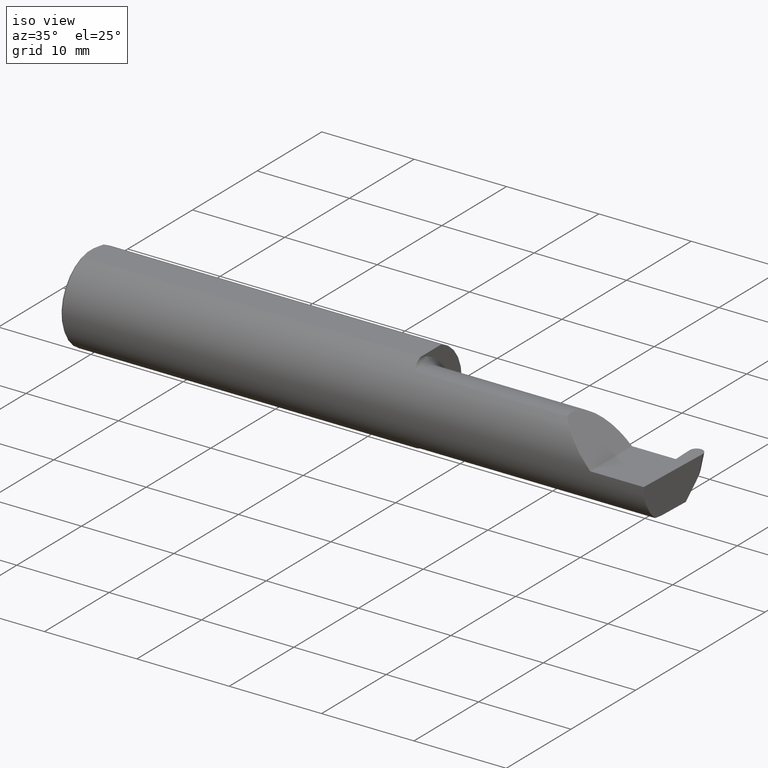
[diagram: clean part render]
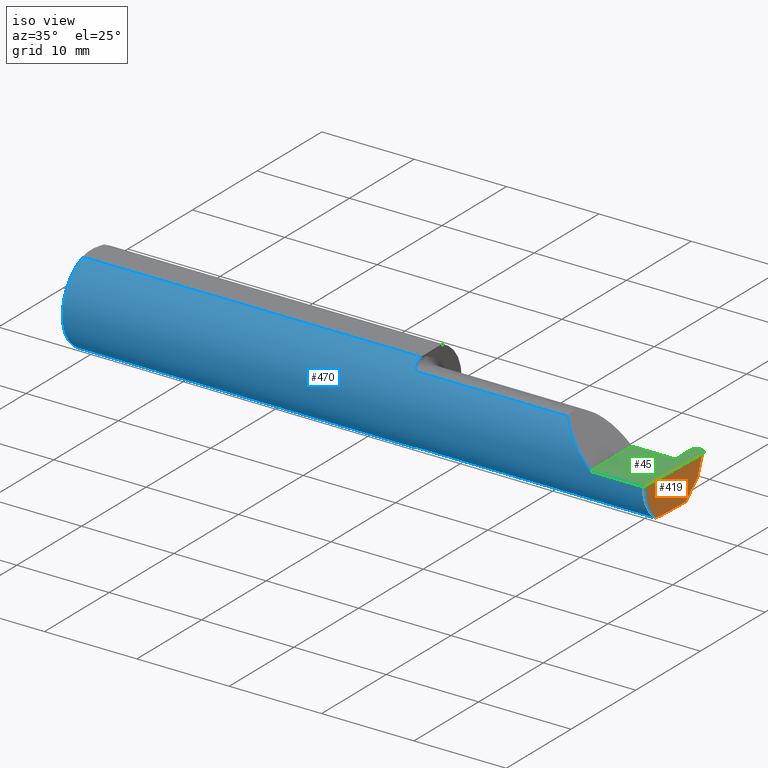
[diagram: same view with three faces highlighted in distinct colors, each labeled with its STEP entity id]
A machine part, iso view with three faces highlighted in distinct colors.
Their STEP definitions:

[orange] entity #419 — the highlighted planar face has unit normal (-0.9992, 0.0349, 0.0175).
#6 = VERTEX_POINT ( 'NONE', #655 ) ;
#13 = EDGE_CURVE ( 'NONE', #455, #108, #382, .T. ) ;
#28 = VERTEX_POINT ( 'NONE', #490 ) ;
#35 = ORIENTED_EDGE ( 'NONE', *, *, #118, .T. ) ;
#52 = VECTOR ( 'NONE', #465, 39.37007874015748854 ) ;
#63 = DIRECTION ( 'NONE',  ( -0.03489949670249509889, -0.9993908270190959842, 0.000000000000000000 ) ) ;
#80 = CARTESIAN_POINT ( 'NONE',  ( 2.496474746315712867, 0.1068850723125632091, -0.1034179792305871259 ) ) ;
#81 = LINE ( 'NONE', #451, #52 ) ;
#96 =( BOUNDED_CURVE ( )  B_SPLINE_CURVE ( 3, ( #703, #152, #653, #478 ),
 .UNSPECIFIED., .F., .F. ) 
 B_SPLINE_CURVE_WITH_KNOTS ( ( 4, 4 ),
 ( 0.8789888184544275562, 1.107026853503871644 ),
 .UNSPECIFIED. ) 
 CURVE ( )  GEOMETRIC_REPRESENTATION_ITEM ( )  RATIONAL_B_SPLINE_CURVE ( ( 1.000000000000000000, 0.9956712472009929815, 0.9956712472009929815, 1.000000000000000000 ) ) 
 REPRESENTATION_ITEM ( '' )  );
#108 = VERTEX_POINT ( 'NONE', #237 ) ;
#118 = EDGE_CURVE ( 'NONE', #6, #28, #81, .T. ) ;
#152 = CARTESIAN_POINT ( 'NONE',  ( 2.488245243745037527, -0.1061291577212408604, -0.1486999626928446339 ) ) ;
#157 = CARTESIAN_POINT ( 'NONE',  ( 2.488006099050898090, -0.1873499999999999888, 0.000000000000000000 ) ) ;
#208 = ORIENTED_EDGE ( 'NONE', *, *, #282, .F. ) ;
#215 = DIRECTION ( 'NONE',  ( -0.03489949670249509889, -0.9993908270190959842, 0.000000000000000000 ) ) ;
#220 = ORIENTED_EDGE ( 'NONE', *, *, #527, .F. ) ;
#228 = VECTOR ( 'NONE', #580, 39.37007874015748854 ) ;
#236 = LINE ( 'NONE', #80, #670 ) ;
#237 = CARTESIAN_POINT ( 'NONE',  ( 2.489018003393509648, -0.08335000000000003517, -0.1500000000000000500 ) ) ;
#256 = CARTESIAN_POINT ( 'NONE',  ( 2.487901662807321390, -0.1172600179964006090, -0.1461167706989303650 ) ) ;
#272 = CARTESIAN_POINT ( 'NONE',  ( 2.489315391880043915, -0.07483390797619574042, -0.1500000000000000500 ) ) ;
#282 = EDGE_CURVE ( 'NONE', #310, #315, #302, .T. ) ;
#291 = ORIENTED_EDGE ( 'NONE', *, *, #364, .T. ) ;
#302 =( BOUNDED_CURVE ( )  B_SPLINE_CURVE ( 3, ( #314, #536, #698, #157 ),
 .UNSPECIFIED., .F., .T. ) 
 B_SPLINE_CURVE_WITH_KNOTS ( ( 4, 4 ),
 ( 5.852427379562164411, 6.746954780470612256 ),
 .UNSPECIFIED. ) 
 CURVE ( )  GEOMETRIC_REPRESENTATION_ITEM ( )  RATIONAL_B_SPLINE_CURVE ( ( 1.000000000000000000, 0.9344226172588802060, 0.9344226172588802060, 1.000000000000000000 ) ) 
 REPRESENTATION_ITEM ( '' )  );
#310 = VERTEX_POINT ( 'NONE', #256 ) ;
#311 = VECTOR ( 'NONE', #63, 39.37007874015748143 ) ;
#314 = CARTESIAN_POINT ( 'NONE',  ( 2.487901662807321390, -0.1172600179964006090, -0.1461167706989303650 ) ) ;
#315 = VERTEX_POINT ( 'NONE', #423 ) ;
#344 = CARTESIAN_POINT ( 'NONE',  ( 2.494034478493234452, 0.06030305154315081240, -0.1500000000000000500 ) ) ;
#364 = EDGE_CURVE ( 'NONE', #28, #315, #426, .T. ) ;
#382 = LINE ( 'NONE', #272, #311 ) ;
#404 = DIRECTION ( 'NONE',  ( -0.03701744261649878714, -0.7066221440565398915, -0.7066221440565479961 ) ) ;
#419 = ADVANCED_FACE ( 'NONE', ( #454 ), #501, .F. ) ;
#423 = CARTESIAN_POINT ( 'NONE',  ( 2.488006099050898090, -0.1873499999999999888, 0.000000000000000000 ) ) ;
#424 = ORIENTED_EDGE ( 'NONE', *, *, #662, .T. ) ;
#426 = LINE ( 'NONE', #486, #228 ) ;
#445 = EDGE_LOOP ( 'NONE', ( #220, #35, #291, #208, #424, #476 ) ) ;
#451 = CARTESIAN_POINT ( 'NONE',  ( 2.499950392650356346, 0.1545085540790380740, 0.0003624150208497705782 ) ) ;
#454 = FACE_OUTER_BOUND ( 'NONE', #445, .T. ) ;
#455 = VERTEX_POINT ( 'NONE', #344 ) ;
#465 = DIRECTION ( 'NONE',  ( 0.02739170151060046562, 0.3089010440752013031, 0.9506996579664918068 ) ) ;
#476 = ORIENTED_EDGE ( 'NONE', *, *, #13, .F. ) ;
#477 = AXIS2_PLACEMENT_3D ( 'NONE', #648, #512, #215 ) ;
#478 = CARTESIAN_POINT ( 'NONE',  ( 2.489018003393509648, -0.08335000000000003517, -0.1500000000000000500 ) ) ;
#486 = CARTESIAN_POINT ( 'NONE',  ( 2.499982912697886750, 0.1556210691174950700, 0.000000000000000000 ) ) ;
#490 = CARTESIAN_POINT ( 'NONE',  ( 2.499939950694276103, 0.1543907983005533280, 0.000000000000000000 ) ) ;
#501 = PLANE ( 'NONE',  #477 ) ;
#512 = DIRECTION ( 'NONE',  ( -0.9992386149554828290, 0.03489418134010779937, 0.01745240643728358798 ) ) ;
#527 = EDGE_CURVE ( 'NONE', #6, #455, #236, .T. ) ;
#536 = CARTESIAN_POINT ( 'NONE',  ( 2.486959146249366537, -0.1623470442677541203, -0.1099340280425339100 ) ) ;
#580 = DIRECTION ( 'NONE',  ( -0.03489949670249509889, -0.9993908270190959842, 0.000000000000000000 ) ) ;
#648 = CARTESIAN_POINT ( 'NONE',  ( 2.499982912697886750, 0.1556210691174950700, 0.000000000000000000 ) ) ;
#653 = CARTESIAN_POINT ( 'NONE',  ( 2.488618975064261996, -0.09477667630339417504, -0.1500000000000000500 ) ) ;
#655 = CARTESIAN_POINT ( 'NONE',  ( 2.497553638666706544, 0.1274799371216591704, -0.08282311442149091485 ) ) ;
#662 = EDGE_CURVE ( 'NONE', #310, #108, #96, .T. ) ;
#670 = VECTOR ( 'NONE', #404, 39.37007874015748143 ) ;
#698 = CARTESIAN_POINT ( 'NONE',  ( 2.486996401427643555, -0.1873500000000000443, -0.05781030015605125721 ) ) ;
#703 = CARTESIAN_POINT ( 'NONE',  ( 2.487901662807321390, -0.1172600179964006090, -0.1461167706989303650 ) ) ;

[blue] entity #470 — the highlighted cylindrical surface (partial cylindrical patch) has radius 4.7587 mm, axis along (-1, -0, -0).
#1 = CARTESIAN_POINT ( 'NONE',  ( 1.450000000000000178, -0.06851976604679066440, 0.1743704796142198643 ) ) ;
#4 = DIRECTION ( 'NONE',  ( 0.000000000000000000, 0.000000000000000000, -1.000000000000000000 ) ) ;
#9 = CARTESIAN_POINT ( 'NONE',  ( 1.450000000000000178, -0.06851976604679066440, -0.1743704796142198643 ) ) ;
#17 = CARTESIAN_POINT ( 'NONE',  ( 1.465028532764138580, -0.1137241120808235861, -0.1488947809299403513 ) ) ;
#20 = DIRECTION ( 'NONE',  ( 0.000000000000000000, 1.000000000000000000, 0.000000000000000000 ) ) ;
#24 =( BOUNDED_CURVE ( )  B_SPLINE_CURVE ( 3, ( #248, #689, #198, #531 ),
 .UNSPECIFIED., .F., .F. ) 
 B_SPLINE_CURVE_WITH_KNOTS ( ( 4, 4 ),
 ( 4.712388980384688786, 5.606916381293133966 ),
 .UNSPECIFIED. ) 
 CURVE ( )  GEOMETRIC_REPRESENTATION_ITEM ( )  RATIONAL_B_SPLINE_CURVE ( ( 1.000000000000000000, 0.9344226172588806500, 0.9344226172588806500, 1.000000000000000000 ) ) 
 REPRESENTATION_ITEM ( '' )  );
#25 = CARTESIAN_POINT ( 'NONE',  ( 1.474999999999999867, -0.1172600179964005812, 0.1461167706989303927 ) ) ;
#40 = DIRECTION ( 'NONE',  ( 0.000000000000000000, 1.000000000000000000, 0.000000000000000000 ) ) ;
#41 = EDGE_CURVE ( 'NONE', #511, #187, #72, .T. ) ;
#44 = VERTEX_POINT ( 'NONE', #496 ) ;
#54 = AXIS2_PLACEMENT_3D ( 'NONE', #603, #58, #4 ) ;
#58 = DIRECTION ( 'NONE',  ( 1.000000000000000000, 0.000000000000000000, 0.000000000000000000 ) ) ;
#65 = CARTESIAN_POINT ( 'NONE',  ( 1.472174967710399462, -0.1172600179964005812, -0.1461167706989303927 ) ) ;
#69 = CARTESIAN_POINT ( 'NONE',  ( 1.458439486659307338, -0.1064616213911158682, -0.1542305641651500470 ) ) ;
#72 = CIRCLE ( 'NONE', #54, 0.1873499999999999888 ) ;
#74 = CIRCLE ( 'NONE', #388, 0.1873499999999999888 ) ;
#79 = EDGE_CURVE ( 'NONE', #343, #387, #85, .T. ) ;
#83 = ORIENTED_EDGE ( 'NONE', *, *, #282, .T. ) ;
#85 = CIRCLE ( 'NONE', #166, 0.1873499999999999888 ) ;
#91 = CARTESIAN_POINT ( 'NONE',  ( 1.959450000000000136, -0.1172600179964006506, 0.1461167706989303650 ) ) ;
#102 = CARTESIAN_POINT ( 'NONE',  ( 0.01000000000000013205, 0.000000000000000000, 0.000000000000000000 ) ) ;
#117 = CARTESIAN_POINT ( 'NONE',  ( 1.474999999999999867, -0.1172600179964005812, -0.1461167706989303650 ) ) ;
#120 = LINE ( 'NONE', #560, #262 ) ;
#123 = CARTESIAN_POINT ( 'NONE',  ( 0.01000000000000013205, 0.000000000000000000, -0.1873499999999999888 ) ) ;
#125 = CARTESIAN_POINT ( 'NONE',  ( 1.450358271039144054, -0.07873626113568082951, -0.1700887912276896341 ) ) ;
#130 = CARTESIAN_POINT ( 'NONE',  ( 1.451829077486400443, -0.08839624499054646312, 0.1652742498708037744 ) ) ;
#137 = LINE ( 'NONE', #357, #402 ) ;
#143 = AXIS2_PLACEMENT_3D ( 'NONE', #556, #616, #673 ) ;
#157 = CARTESIAN_POINT ( 'NONE',  ( 2.488006099050898090, -0.1873499999999999888, 0.000000000000000000 ) ) ;
#166 = AXIS2_PLACEMENT_3D ( 'NONE', #576, #686, #20 ) ;
#181 = CARTESIAN_POINT ( 'NONE',  ( 1.456304331342287872, -0.1022198306720690925, -0.1570962426853818594 ) ) ;
#187 = VERTEX_POINT ( 'NONE', #123 ) ;
#188 = VECTOR ( 'NONE', #514, 39.37007874015748143 ) ;
#191 = LINE ( 'NONE', #346, #188 ) ;
#197 = CARTESIAN_POINT ( 'NONE',  ( 1.472161949849308371, -0.1172600179964060768, 0.1461167706989261184 ) ) ;
#198 = CARTESIAN_POINT ( 'NONE',  ( 2.150065971957465294, -0.1623470442677543146, 0.1099340280425333688 ) ) ;
#200 = ORIENTED_EDGE ( 'NONE', *, *, #319, .T. ) ;
#207 = CARTESIAN_POINT ( 'NONE',  ( 1.450000000000000178, -0.06851976604679066440, -0.1743704796142198643 ) ) ;
#209 = EDGE_CURVE ( 'NONE', #255, #453, #191, .T. ) ;
#211 = ORIENTED_EDGE ( 'NONE', *, *, #79, .F. ) ;
#213 = CARTESIAN_POINT ( 'NONE',  ( 1.450000000000000178, 0.000000000000000000, 0.000000000000000000 ) ) ;
#214 = VERTEX_POINT ( 'NONE', #25 ) ;
#216 = ORIENTED_EDGE ( 'NONE', *, *, #433, .F. ) ;
#226 = CARTESIAN_POINT ( 'NONE',  ( 1.469511795768554840, -0.1163687266324234804, -0.1468371510166788796 ) ) ;
#241 = ORIENTED_EDGE ( 'NONE', *, *, #548, .F. ) ;
#242 = VECTOR ( 'NONE', #474, 39.37007874015748143 ) ;
#248 = CARTESIAN_POINT ( 'NONE',  ( 2.260000000000000231, -0.1873499999999999888, 2.939152317953647352E-17 ) ) ;
#250 = CARTESIAN_POINT ( 'NONE',  ( 1.465004157323697376, -0.1137044537483316020, 0.1489098419202428691 ) ) ;
#255 = VERTEX_POINT ( 'NONE', #362 ) ;
#256 = CARTESIAN_POINT ( 'NONE',  ( 2.487901662807321390, -0.1172600179964006090, -0.1461167706989303650 ) ) ;
#260 = AXIS2_PLACEMENT_3D ( 'NONE', #213, #305, #40 ) ;
#262 = VECTOR ( 'NONE', #280, 39.37007874015748143 ) ;
#264 = DIRECTION ( 'NONE',  ( 1.000000000000000000, 0.000000000000000000, 0.000000000000000000 ) ) ;
#268 = ORIENTED_EDGE ( 'NONE', *, *, #330, .F. ) ;
#280 = DIRECTION ( 'NONE',  ( -1.000000000000000000, -5.153652266948881677E-17, -0.000000000000000000 ) ) ;
#281 = B_SPLINE_CURVE_WITH_KNOTS ( 'NONE', 3,
 ( #117, #65, #226, #17, #564, #69, #181, #447, #612, #125, #664, #9 ),
 .UNSPECIFIED., .F., .F.,
 ( 4, 2, 2, 2, 2, 4 ),
 ( 1.967976973658592312E-07, 0.0002120314145722273266, 0.0004238660314470887587, 0.0008475352651967989377, 0.001271204498946509279, 0.001694873732696219621 ),
 .UNSPECIFIED. ) ;
#282 = EDGE_CURVE ( 'NONE', #310, #315, #302, .T. ) ;
#288 = LINE ( 'NONE', #513, #313 ) ;
#298 = CIRCLE ( 'NONE', #260, 0.1873499999999999888 ) ;
#300 = CARTESIAN_POINT ( 'NONE',  ( 1.450353553376444893, -0.07868116735658675642, 0.1701139256562800572 ) ) ;
#302 =( BOUNDED_CURVE ( )  B_SPLINE_CURVE ( 3, ( #314, #536, #698, #157 ),
 .UNSPECIFIED., .F., .T. ) 
 B_SPLINE_CURVE_WITH_KNOTS ( ( 4, 4 ),
 ( 5.852427379562164411, 6.746954780470612256 ),
 .UNSPECIFIED. ) 
 CURVE ( )  GEOMETRIC_REPRESENTATION_ITEM ( )  RATIONAL_B_SPLINE_CURVE ( ( 1.000000000000000000, 0.9344226172588802060, 0.9344226172588802060, 1.000000000000000000 ) ) 
 REPRESENTATION_ITEM ( '' )  );
#303 = ORIENTED_EDGE ( 'NONE', *, *, #41, .T. ) ;
#305 = DIRECTION ( 'NONE',  ( 1.000000000000000000, 5.153652266948881677E-17, 0.000000000000000000 ) ) ;
#310 = VERTEX_POINT ( 'NONE', #256 ) ;
#313 = VECTOR ( 'NONE', #400, 39.37007874015748143 ) ;
#314 = CARTESIAN_POINT ( 'NONE',  ( 2.487901662807321390, -0.1172600179964006090, -0.1461167706989303650 ) ) ;
#315 = VERTEX_POINT ( 'NONE', #423 ) ;
#319 = EDGE_CURVE ( 'NONE', #44, #608, #24, .T. ) ;
#330 = EDGE_CURVE ( 'NONE', #214, #608, #585, .T. ) ;
#332 = CYLINDRICAL_SURFACE ( 'NONE', #143, 0.1873499999999999888 ) ;
#334 = EDGE_LOOP ( 'NONE', ( #699, #83, #369, #200, #268, #241, #211, #415, #303, #687, #472, #518, #216 ) ) ;
#337 = B_SPLINE_CURVE_WITH_KNOTS ( 'NONE', 3,
 ( #526, #516, #300, #130, #397, #412, #620, #688, #250, #568, #197, #350 ),
 .UNSPECIFIED., .F., .F.,
 ( 4, 2, 2, 2, 2, 4 ),
 ( 4.423516731080825304E-05, 0.0004615475116586706503, 0.0008788598560065329730, 0.001296172200354395350, 0.001504828372528325834, 0.001713484544702256317 ),
 .UNSPECIFIED. ) ;
#340 = EDGE_CURVE ( 'NONE', #352, #255, #298, .T. ) ;
#343 = VERTEX_POINT ( 'NONE', #694 ) ;
#346 = CARTESIAN_POINT ( 'NONE',  ( 0.000000000000000000, 0.06325108694718235836, 0.1763499999999999235 ) ) ;
#350 = CARTESIAN_POINT ( 'NONE',  ( 1.474999999999999867, -0.1172600179964005812, 0.1461167706989303927 ) ) ;
#352 = VERTEX_POINT ( 'NONE', #207 ) ;
#357 = CARTESIAN_POINT ( 'NONE',  ( 3.749399456654646757E-32, -0.1873499999999999610, 3.061616997868383634E-16 ) ) ;
#362 = CARTESIAN_POINT ( 'NONE',  ( 1.450000000000000178, 0.06325108694718235836, 0.1763499999999999235 ) ) ;
#369 = ORIENTED_EDGE ( 'NONE', *, *, #604, .T. ) ;
#377 = CARTESIAN_POINT ( 'NONE',  ( 0.01000000000000013205, 0.06325108694718235836, 0.1763499999999999235 ) ) ;
#387 = VERTEX_POINT ( 'NONE', #1 ) ;
#388 = AXIS2_PLACEMENT_3D ( 'NONE', #102, #264, #492 ) ;
#391 = FACE_OUTER_BOUND ( 'NONE', #334, .T. ) ;
#395 = CARTESIAN_POINT ( 'NONE',  ( 1.474999999999999867, -0.1172600179964005812, -0.1461167706989303650 ) ) ;
#397 = CARTESIAN_POINT ( 'NONE',  ( 1.452945243422983035, -0.09312071749437417223, 0.1626553472577906556 ) ) ;
#400 = DIRECTION ( 'NONE',  ( 1.000000000000000000, 0.000000000000000000, 0.000000000000000000 ) ) ;
#402 = VECTOR ( 'NONE', #579, 39.37007874015748143 ) ;
#410 = VERTEX_POINT ( 'NONE', #395 ) ;
#412 = CARTESIAN_POINT ( 'NONE',  ( 1.456287624083520083, -0.1021858045380144436, 0.1571187174372875028 ) ) ;
#415 = ORIENTED_EDGE ( 'NONE', *, *, #578, .F. ) ;
#423 = CARTESIAN_POINT ( 'NONE',  ( 2.488006099050898090, -0.1873499999999999888, 0.000000000000000000 ) ) ;
#433 = EDGE_CURVE ( 'NONE', #410, #352, #281, .T. ) ;
#447 = CARTESIAN_POINT ( 'NONE',  ( 1.452960551809340473, -0.09317341542745746774, -0.1626248379125196930 ) ) ;
#453 = VERTEX_POINT ( 'NONE', #377 ) ;
#467 = CARTESIAN_POINT ( 'NONE',  ( 0.01000000000000013205, -0.06325108694718235836, 0.1763499999999999235 ) ) ;
#470 = ADVANCED_FACE ( 'NONE', ( #391 ), #332, .T. ) ;
#471 = EDGE_CURVE ( 'NONE', #310, #410, #120, .T. ) ;
#472 = ORIENTED_EDGE ( 'NONE', *, *, #209, .F. ) ;
#474 = DIRECTION ( 'NONE',  ( 1.000000000000000000, 5.153652266948881677E-17, 0.000000000000000000 ) ) ;
#492 = DIRECTION ( 'NONE',  ( 0.000000000000000000, 0.000000000000000000, -1.000000000000000000 ) ) ;
#496 = CARTESIAN_POINT ( 'NONE',  ( 2.260000000000000231, -0.1873499999999999888, 2.939152317953647352E-17 ) ) ;
#511 = VERTEX_POINT ( 'NONE', #467 ) ;
#513 = CARTESIAN_POINT ( 'NONE',  ( 0.000000000000000000, -0.06325108694718235836, 0.1763499999999999235 ) ) ;
#514 = DIRECTION ( 'NONE',  ( -1.000000000000000000, -0.000000000000000000, -0.000000000000000000 ) ) ;
#516 = CARTESIAN_POINT ( 'NONE',  ( 1.449999999999999734, -0.07367581953296700736, 0.1723443821957854338 ) ) ;
#518 = ORIENTED_EDGE ( 'NONE', *, *, #340, .F. ) ;
#522 = CARTESIAN_POINT ( 'NONE',  ( 2.113883229301068312, -0.1172600179964011224, 0.1461167706989300596 ) ) ;
#526 = CARTESIAN_POINT ( 'NONE',  ( 1.450000000000000178, -0.06851976604679066440, 0.1743704796142198643 ) ) ;
#531 = CARTESIAN_POINT ( 'NONE',  ( 2.113883229301068312, -0.1172600179964011224, 0.1461167706989300596 ) ) ;
#536 = CARTESIAN_POINT ( 'NONE',  ( 2.486959146249366537, -0.1623470442677541203, -0.1099340280425339100 ) ) ;
#548 = EDGE_CURVE ( 'NONE', #387, #214, #337, .T. ) ;
#556 = CARTESIAN_POINT ( 'NONE',  ( 0.000000000000000000, 0.000000000000000000, 0.000000000000000000 ) ) ;
#560 = CARTESIAN_POINT ( 'NONE',  ( 1.959450000000000136, -0.1172600179964006506, -0.1461167706989303650 ) ) ;
#564 = CARTESIAN_POINT ( 'NONE',  ( 1.463203859946834440, -0.1120371980050638844, -0.1501764597936559309 ) ) ;
#568 = CARTESIAN_POINT ( 'NONE',  ( 1.469481469043492083, -0.1163560528186165510, 0.1468472430636323656 ) ) ;
#576 = CARTESIAN_POINT ( 'NONE',  ( 1.450000000000000178, 0.000000000000000000, 0.000000000000000000 ) ) ;
#578 = EDGE_CURVE ( 'NONE', #511, #343, #288, .T. ) ;
#579 = DIRECTION ( 'NONE',  ( -1.000000000000000000, -0.000000000000000000, -0.000000000000000000 ) ) ;
#585 = LINE ( 'NONE', #91, #242 ) ;
#603 = CARTESIAN_POINT ( 'NONE',  ( 0.01000000000000013205, 0.000000000000000000, 0.000000000000000000 ) ) ;
#604 = EDGE_CURVE ( 'NONE', #315, #44, #137, .T. ) ;
#608 = VERTEX_POINT ( 'NONE', #522 ) ;
#612 = CARTESIAN_POINT ( 'NONE',  ( 1.451843912362378308, -0.08846956905169092722, -0.1652353808078972086 ) ) ;
#616 = DIRECTION ( 'NONE',  ( -1.000000000000000000, -0.000000000000000000, -0.000000000000000000 ) ) ;
#620 = CARTESIAN_POINT ( 'NONE',  ( 1.458475602106621638, -0.1064978748893405519, 0.1542035505680384444 ) ) ;
#623 = EDGE_CURVE ( 'NONE', #187, #453, #74, .T. ) ;
#664 = CARTESIAN_POINT ( 'NONE',  ( 1.449999999999999512, -0.07368234487347195827, -0.1723418180300747282 ) ) ;
#673 = DIRECTION ( 'NONE',  ( 0.000000000000000000, 0.000000000000000000, 1.000000000000000000 ) ) ;
#686 = DIRECTION ( 'NONE',  ( 1.000000000000000000, 5.153652266948881677E-17, 0.000000000000000000 ) ) ;
#687 = ORIENTED_EDGE ( 'NONE', *, *, #623, .T. ) ;
#688 = CARTESIAN_POINT ( 'NONE',  ( 1.463163223656403167, -0.1119926267047277324, 0.1502091925606063028 ) ) ;
#689 = CARTESIAN_POINT ( 'NONE',  ( 2.202189699843947857, -0.1873500000000000165, 0.05781030015605082700 ) ) ;
#694 = CARTESIAN_POINT ( 'NONE',  ( 1.450000000000000178, -0.06325108694718287183, 0.1763499999999999235 ) ) ;
#698 = CARTESIAN_POINT ( 'NONE',  ( 2.486996401427643555, -0.1873500000000000443, -0.05781030015605125721 ) ) ;
#699 = ORIENTED_EDGE ( 'NONE', *, *, #471, .F. ) ;

[green] entity #45 — the highlighted planar face has unit normal (-0, 0, -1).
#22 = DIRECTION ( 'NONE',  ( 1.000000000000000000, -0.000000000000000000, -0.000000000000000000 ) ) ;
#27 = CARTESIAN_POINT ( 'NONE',  ( 2.447024025498200750, 0.06664999999999991764, 0.000000000000000000 ) ) ;
#28 = VERTEX_POINT ( 'NONE', #490 ) ;
#29 = DIRECTION ( 'NONE',  ( -0.000000000000000000, 1.000000000000000000, -0.000000000000000000 ) ) ;
#31 = CARTESIAN_POINT ( 'NONE',  ( 2.488968613720943246, 0.1846500000000000641, -2.084523217784549751E-18 ) ) ;
#32 = VERTEX_POINT ( 'NONE', #378 ) ;
#44 = VERTEX_POINT ( 'NONE', #496 ) ;
#45 = ADVANCED_FACE ( 'NONE', ( #549 ), #383, .F. ) ;
#57 = CARTESIAN_POINT ( 'NONE',  ( 2.500000000000000000, -0.2500000000000000555, 0.000000000000000000 ) ) ;
#71 = VERTEX_POINT ( 'NONE', #27 ) ;
#76 = CARTESIAN_POINT ( 'NONE',  ( 2.472196486352602030, 0.1846500000000000363, 0.000000000000000000 ) ) ;
#77 = DIRECTION ( 'NONE',  ( 1.000000000000000000, -0.000000000000000000, -0.000000000000000000 ) ) ;
#78 = VERTEX_POINT ( 'NONE', #342 ) ;
#95 = LINE ( 'NONE', #368, #533 ) ;
#115 = DIRECTION ( 'NONE',  ( -1.224646799147353947E-16, 0.000000000000000000, -1.000000000000000000 ) ) ;
#127 = CARTESIAN_POINT ( 'NONE',  ( 2.447024025498200750, 0.06664999999999991764, 0.000000000000000000 ) ) ;
#133 = LINE ( 'NONE', #680, #273 ) ;
#134 =( BOUNDED_CURVE ( )  B_SPLINE_CURVE ( 3, ( #173, #386, #598, #602 ),
 .UNSPECIFIED., .F., .F. ) 
 B_SPLINE_CURVE_WITH_KNOTS ( ( 4, 4 ),
 ( 6.199081184676152212, 7.797674339294876411 ),
 .UNSPECIFIED. ) 
 CURVE ( )  GEOMETRIC_REPRESENTATION_ITEM ( )  RATIONAL_B_SPLINE_CURVE ( ( 1.000000000000000000, 0.7981407609938082626, 0.7981407609938082626, 1.000000000000000000 ) ) 
 REPRESENTATION_ITEM ( '' )  );
#137 = LINE ( 'NONE', #357, #402 ) ;
#141 = EDGE_CURVE ( 'NONE', #28, #566, #164, .T. ) ;
#154 = ORIENTED_EDGE ( 'NONE', *, *, #364, .F. ) ;
#164 =( BOUNDED_CURVE ( )  B_SPLINE_CURVE ( 3, ( #507, #354, #31, #392 ),
 .UNSPECIFIED., .F., .T. ) 
 B_SPLINE_CURVE_WITH_KNOTS ( ( 4, 4 ),
 ( 1.627103621474501827, 3.225696776093226248 ),
 .UNSPECIFIED. ) 
 CURVE ( )  GEOMETRIC_REPRESENTATION_ITEM ( )  RATIONAL_B_SPLINE_CURVE ( ( 1.000000000000000000, 0.7981407609938081515, 0.7981407609938081515, 1.000000000000000000 ) ) 
 REPRESENTATION_ITEM ( '' )  );
#173 = CARTESIAN_POINT ( 'NONE',  ( 2.471703513647399486, 0.1846500000000000363, 0.000000000000000000 ) ) ;
#190 = CARTESIAN_POINT ( 'NONE',  ( 2.471703513647399486, 0.1846500000000000363, 0.000000000000000000 ) ) ;
#199 = EDGE_CURVE ( 'NONE', #32, #71, #510, .T. ) ;
#202 = VECTOR ( 'NONE', #247, 39.37007874015748143 ) ;
#204 = VERTEX_POINT ( 'NONE', #290 ) ;
#219 = EDGE_CURVE ( 'NONE', #71, #78, #95, .T. ) ;
#221 = VECTOR ( 'NONE', #22, 39.37007874015748143 ) ;
#228 = VECTOR ( 'NONE', #580, 39.37007874015748854 ) ;
#247 = DIRECTION ( 'NONE',  ( 1.000000000000000000, 5.153652266948881677E-17, 0.000000000000000000 ) ) ;
#273 = VECTOR ( 'NONE', #29, 39.37007874015748143 ) ;
#290 = CARTESIAN_POINT ( 'NONE',  ( 2.260000000000000231, 0.06665000000000000091, 1.285879139104721225E-16 ) ) ;
#315 = VERTEX_POINT ( 'NONE', #423 ) ;
#324 = AXIS2_PLACEMENT_3D ( 'NONE', #57, #115, #610 ) ;
#342 = CARTESIAN_POINT ( 'NONE',  ( 2.443960049305725857, 0.1543907983005533280, 0.000000000000000000 ) ) ;
#353 = LINE ( 'NONE', #628, #202 ) ;
#354 = CARTESIAN_POINT ( 'NONE',  ( 2.500555318597047716, 0.1720126294265148514, -3.503485321703165850E-18 ) ) ;
#357 = CARTESIAN_POINT ( 'NONE',  ( 3.749399456654646757E-32, -0.1873499999999999610, 3.061616997868383634E-16 ) ) ;
#359 = ORIENTED_EDGE ( 'NONE', *, *, #459, .T. ) ;
#364 = EDGE_CURVE ( 'NONE', #28, #315, #426, .T. ) ;
#368 = CARTESIAN_POINT ( 'NONE',  ( 2.443917087302114766, 0.1556210691174950977, 0.000000000000000000 ) ) ;
#375 = LINE ( 'NONE', #654, #221 ) ;
#378 = CARTESIAN_POINT ( 'NONE',  ( 2.437903374698175529, 0.06664999999999991764, 0.000000000000000000 ) ) ;
#383 = PLANE ( 'NONE',  #324 ) ;
#386 = CARTESIAN_POINT ( 'NONE',  ( 2.454931386279057826, 0.1846500000000000918, 2.084523217784548210E-18 ) ) ;
#392 = CARTESIAN_POINT ( 'NONE',  ( 2.472196486352602030, 0.1846500000000000363, 0.000000000000000000 ) ) ;
#399 = ORIENTED_EDGE ( 'NONE', *, *, #141, .T. ) ;
#402 = VECTOR ( 'NONE', #579, 39.37007874015748143 ) ;
#422 = EDGE_CURVE ( 'NONE', #588, #566, #375, .T. ) ;
#423 = CARTESIAN_POINT ( 'NONE',  ( 2.488006099050898090, -0.1873499999999999888, 0.000000000000000000 ) ) ;
#426 = LINE ( 'NONE', #486, #228 ) ;
#432 = ORIENTED_EDGE ( 'NONE', *, *, #219, .F. ) ;
#436 = ORIENTED_EDGE ( 'NONE', *, *, #502, .F. ) ;
#459 = EDGE_CURVE ( 'NONE', #588, #78, #134, .T. ) ;
#462 = ORIENTED_EDGE ( 'NONE', *, *, #199, .F. ) ;
#486 = CARTESIAN_POINT ( 'NONE',  ( 2.499982912697886750, 0.1556210691174950700, 0.000000000000000000 ) ) ;
#490 = CARTESIAN_POINT ( 'NONE',  ( 2.499939950694276103, 0.1543907983005533280, 0.000000000000000000 ) ) ;
#496 = CARTESIAN_POINT ( 'NONE',  ( 2.260000000000000231, -0.1873499999999999888, 2.939152317953647352E-17 ) ) ;
#502 = EDGE_CURVE ( 'NONE', #204, #32, #353, .T. ) ;
#507 = CARTESIAN_POINT ( 'NONE',  ( 2.499939950694276103, 0.1543907983005533280, 0.000000000000000000 ) ) ;
#510 = LINE ( 'NONE', #127, #581 ) ;
#532 = ORIENTED_EDGE ( 'NONE', *, *, #604, .F. ) ;
#533 = VECTOR ( 'NONE', #640, 39.37007874015748854 ) ;
#549 = FACE_OUTER_BOUND ( 'NONE', #558, .T. ) ;
#558 = EDGE_LOOP ( 'NONE', ( #572, #359, #432, #462, #436, #646, #532, #154, #399 ) ) ;
#566 = VERTEX_POINT ( 'NONE', #76 ) ;
#572 = ORIENTED_EDGE ( 'NONE', *, *, #422, .F. ) ;
#579 = DIRECTION ( 'NONE',  ( -1.000000000000000000, -0.000000000000000000, -0.000000000000000000 ) ) ;
#580 = DIRECTION ( 'NONE',  ( -0.03489949670249509889, -0.9993908270190959842, 0.000000000000000000 ) ) ;
#581 = VECTOR ( 'NONE', #77, 39.37007874015748143 ) ;
#588 = VERTEX_POINT ( 'NONE', #190 ) ;
#598 = CARTESIAN_POINT ( 'NONE',  ( 2.443344681402952911, 0.1720126294265148792, 3.503485321703165080E-18 ) ) ;
#600 = EDGE_CURVE ( 'NONE', #44, #204, #133, .T. ) ;
#602 = CARTESIAN_POINT ( 'NONE',  ( 2.443960049305725857, 0.1543907983005533280, 0.000000000000000000 ) ) ;
#604 = EDGE_CURVE ( 'NONE', #315, #44, #137, .T. ) ;
#610 = DIRECTION ( 'NONE',  ( -1.000000000000000000, 0.000000000000000000, 1.224646799147353947E-16 ) ) ;
#628 = CARTESIAN_POINT ( 'NONE',  ( 1.450000000000000178, 0.06664999999999995928, 1.285879139104721225E-16 ) ) ;
#640 = DIRECTION ( 'NONE',  ( -0.03489949670249503644, 0.9993908270190959842, -0.000000000000000000 ) ) ;
#646 = ORIENTED_EDGE ( 'NONE', *, *, #600, .F. ) ;
#654 = CARTESIAN_POINT ( 'NONE',  ( -0.001039370078739994957, 0.1846500000000000363, 0.000000000000000000 ) ) ;
#680 = CARTESIAN_POINT ( 'NONE',  ( 2.260000000000000231, -0.2500000000000000555, 2.939152317953647352E-17 ) ) ;